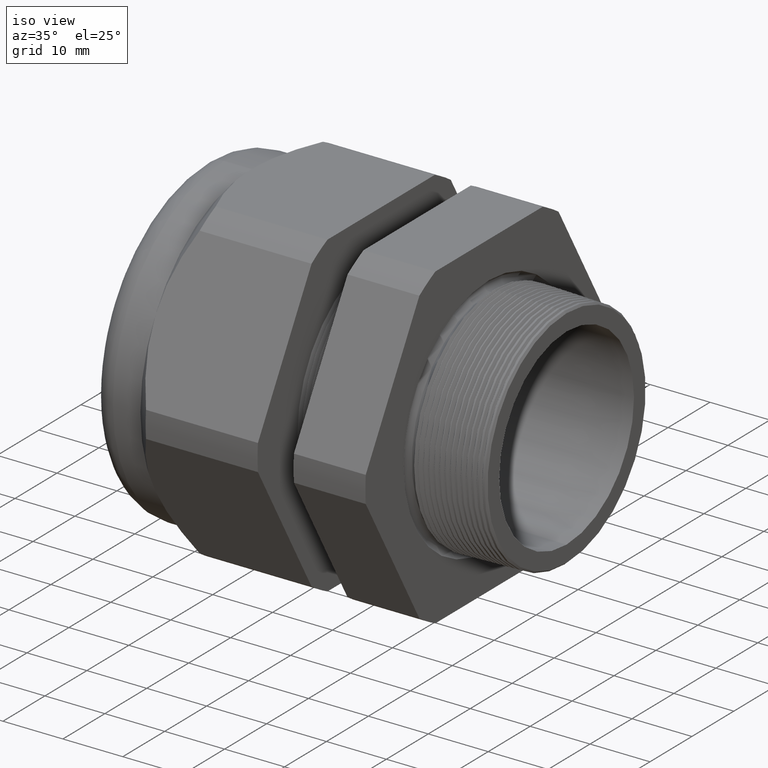
[diagram: clean part render]
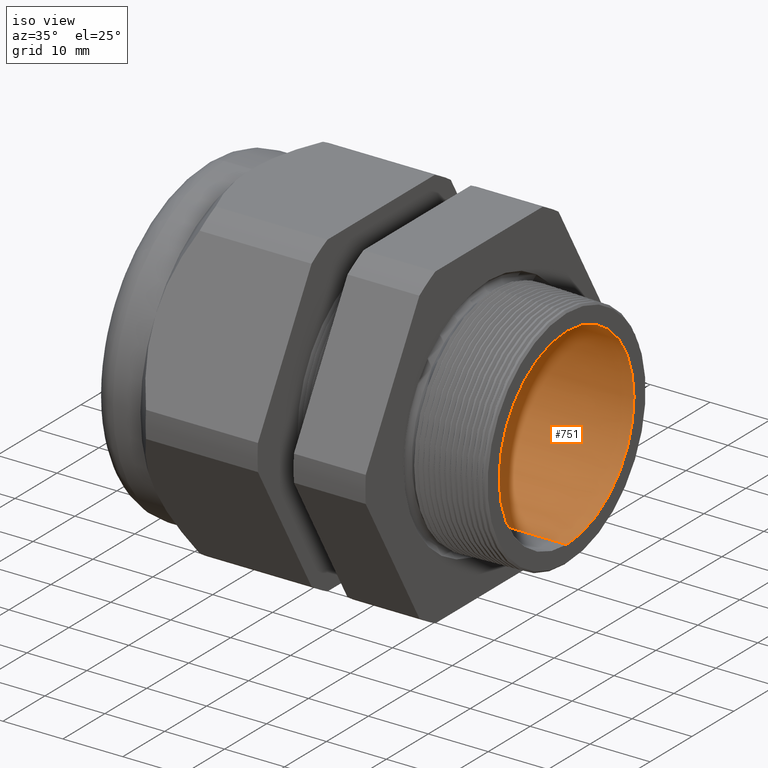
[diagram: same view with one face highlighted and labeled with its STEP entity id]
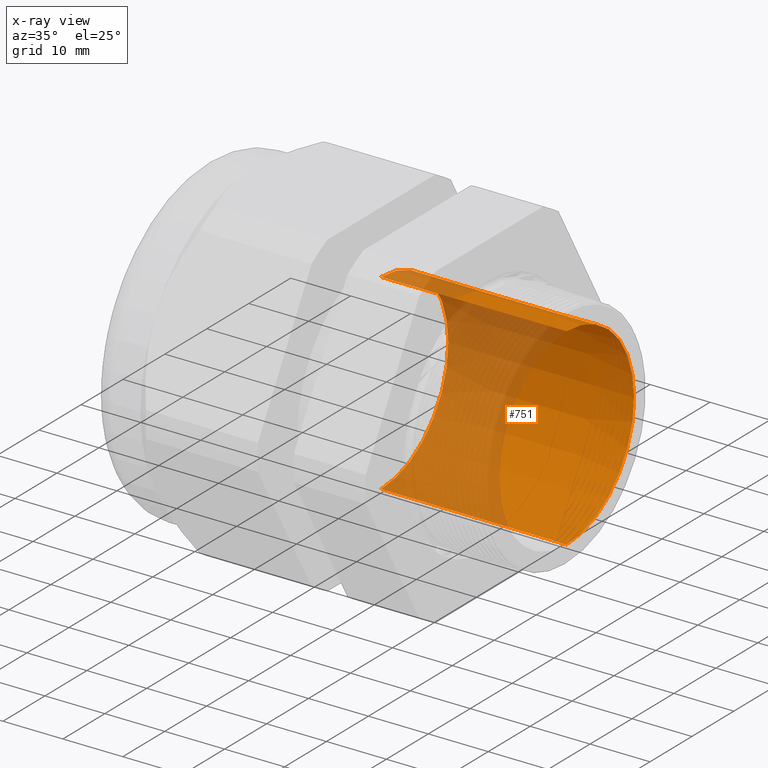
[diagram: x-ray of the same camera — body ghosted, the highlighted face saturated]
A machine part, iso view. The second image highlights one B-rep face of the part: STEP entity #751.
The next image is the same camera in x-ray: the body ghosted, the highlighted face saturated — about 45% of this face is hidden behind the body in this view.
In plain terms, the highlighted conical surface has half-angle 0.145 deg.
Its self-contained STEP definition (entity closure, byte-faithful):
#12 = VERTEX_POINT ( 'NONE', #951 ) ;
#16 = VERTEX_POINT ( 'NONE', #943 ) ;
#19 = VERTEX_POINT ( 'NONE', #942 ) ;
#23 = EDGE_CURVE ( 'NONE', #16, #12, #932, .T. ) ;
#26 = VERTEX_POINT ( 'NONE', #985 ) ;
#257 = EDGE_CURVE ( 'NONE', #19, #26, #1381, .T. ) ;
#751 = ADVANCED_FACE ( 'NONE', ( #2286 ), #2285, .F. ) ;
#754 = EDGE_LOOP ( 'NONE', ( #755, #4898, #4897, #4893 ) ) ;
#755 = ORIENTED_EDGE ( 'NONE', *, *, #23, .F. ) ;
#759 = EDGE_CURVE ( 'NONE', #19, #16, #2270, .T. ) ;
#932 = LINE ( 'NONE', #993, #992 ) ;
#942 = CARTESIAN_POINT ( 'NONE',  ( -1.018802799999999800, 0.0000000000000000000, -0.6300000000000001200 ) ) ;
#943 = CARTESIAN_POINT ( 'NONE',  ( -1.018802799999999800, 7.715274834628326600E-017, 0.6300000000000001200 ) ) ;
#951 = CARTESIAN_POINT ( 'NONE',  ( 0.2000000000000000400, 7.753049377076626700E-017, 0.6330845254709032100 ) ) ;
#985 = CARTESIAN_POINT ( 'NONE',  ( 0.2000000000000000400, 0.0000000000000000000, -0.6330845254709032100 ) ) ;
#991 = DIRECTION ( 'NONE',  ( 0.9999967975839531000, 3.099305439608396500E-019, 0.002530774948145255800 ) ) ;
#992 = VECTOR ( 'NONE', #991, 39.37007874015748100 ) ;
#993 = CARTESIAN_POINT ( 'NONE',  ( -1.018802799999999800, 7.715274834628326600E-017, 0.6300000000000001200 ) ) ;
#1378 = DIRECTION ( 'NONE',  ( 0.9999967975839531000, 0.0000000000000000000, -0.002530774948145255800 ) ) ;
#1379 = VECTOR ( 'NONE', #1378, 39.37007874015748100 ) ;
#1380 = CARTESIAN_POINT ( 'NONE',  ( -1.018802799999999800, 0.0000000000000000000, -0.6300000000000001200 ) ) ;
#1381 = LINE ( 'NONE', #1380, #1379 ) ;
#2266 = DIRECTION ( 'NONE',  ( 0.0000000000000000000, 0.0000000000000000000, -1.000000000000000000 ) ) ;
#2267 = DIRECTION ( 'NONE',  ( 1.000000000000000000, 0.0000000000000000000, 0.0000000000000000000 ) ) ;
#2268 = CARTESIAN_POINT ( 'NONE',  ( -1.018802799999999800, 0.0000000000000000000, 0.0000000000000000000 ) ) ;
#2269 = AXIS2_PLACEMENT_3D ( 'NONE', #2268, #2267, #2266 ) ;
#2270 = CIRCLE ( 'NONE', #2269, 0.6300000000000001200 ) ;
#2280 = DIRECTION ( 'NONE',  ( 0.0000000000000000000, 0.0000000000000000000, -1.000000000000000000 ) ) ;
#2281 = DIRECTION ( 'NONE',  ( 1.000000000000000000, 0.0000000000000000000, 0.0000000000000000000 ) ) ;
#2282 = CARTESIAN_POINT ( 'NONE',  ( -1.018802799999999800, 0.0000000000000000000, 0.0000000000000000000 ) ) ;
#2283 = AXIS2_PLACEMENT_3D ( 'NONE', #2282, #2281, #2280 ) ;
#2285 = CONICAL_SURFACE ( 'NONE', #2283, 0.6300000000000001200, 0.002530777649680151400 ) ;
#2286 = FACE_OUTER_BOUND ( 'NONE', #754, .T. ) ;
#3114 = DIRECTION ( 'NONE',  ( 0.0000000000000000000, 0.0000000000000000000, -1.000000000000000000 ) ) ;
#3115 = DIRECTION ( 'NONE',  ( 1.000000000000000000, 0.0000000000000000000, 0.0000000000000000000 ) ) ;
#3116 = CARTESIAN_POINT ( 'NONE',  ( 0.2000000000000000400, 0.0000000000000000000, 0.0000000000000000000 ) ) ;
#3117 = AXIS2_PLACEMENT_3D ( 'NONE', #3116, #3115, #3114 ) ;
#3118 = CIRCLE ( 'NONE', #3117, 0.6330845254709032100 ) ;
#4885 = EDGE_CURVE ( 'NONE', #26, #12, #3118, .T. ) ;
#4893 = ORIENTED_EDGE ( 'NONE', *, *, #4885, .T. ) ;
#4897 = ORIENTED_EDGE ( 'NONE', *, *, #257, .T. ) ;
#4898 = ORIENTED_EDGE ( 'NONE', *, *, #759, .F. ) ;